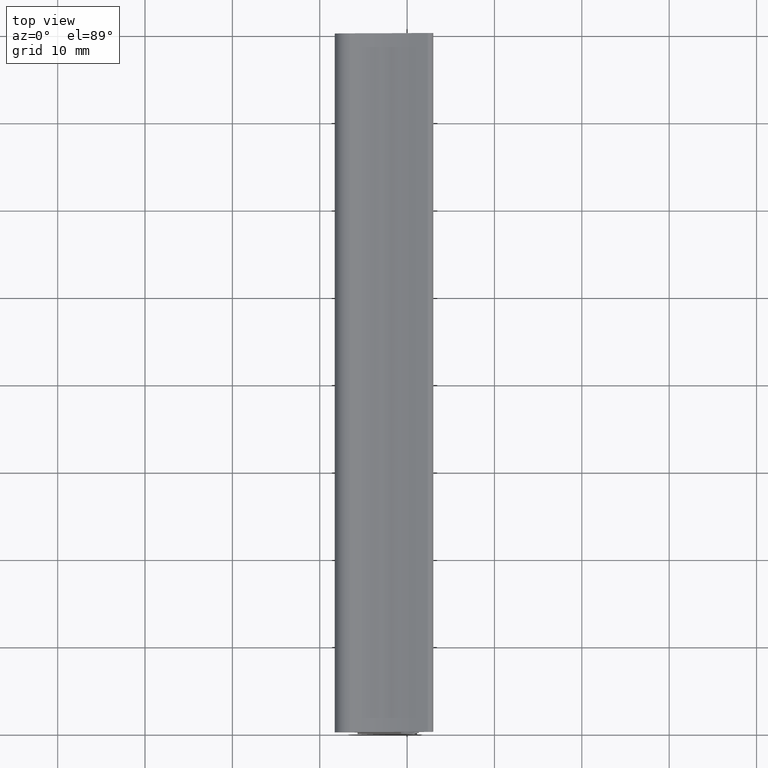
[diagram: clean part render]
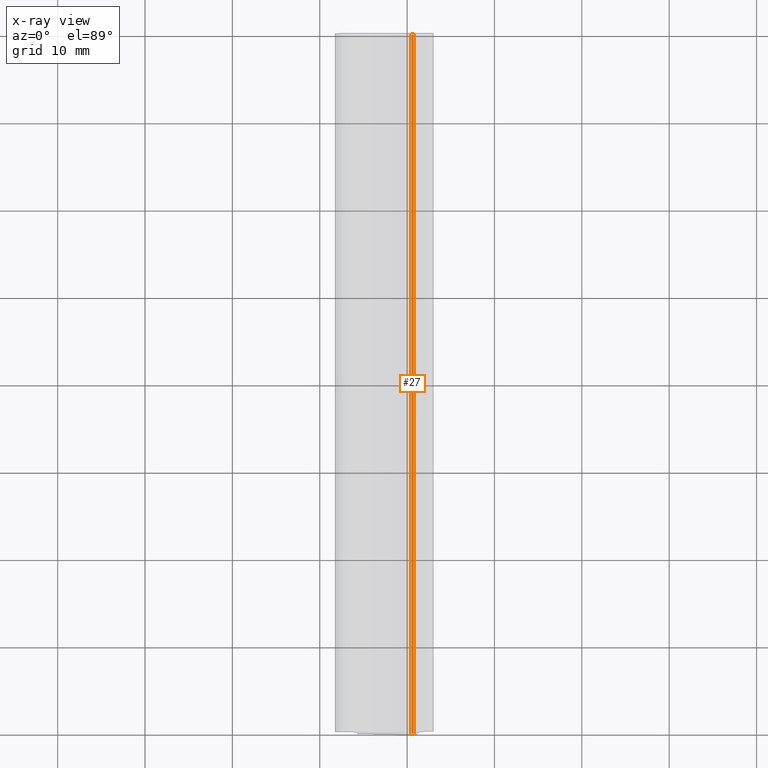
[diagram: x-ray — body ghosted, one internal face saturated and labeled with its STEP entity id]
A machine part, top view, then the same camera in x-ray: the body is ghosted and one INTERNAL B-rep face — a face not visible from any outside direction — is saturated and labeled: STEP entity #27.
In plain terms, the highlighted cylindrical surface (edge-blend (fillet) strip) has radius 0.4 mm, axis along (0, 1, 0).
Its self-contained STEP definition (entity closure, byte-faithful):
#27 = ADVANCED_FACE ( 'NONE', ( #2035 ), #2057, .T. ) ;
#65 = AXIS2_PLACEMENT_3D ( 'NONE', #1447, #1450, #1449 ) ;
#75 = AXIS2_PLACEMENT_3D ( 'NONE', #1443, #1446, #1454 ) ;
#162 = AXIS2_PLACEMENT_3D ( 'NONE', #952, #965, #975 ) ;
#413 = EDGE_LOOP ( 'NONE', ( #458, #467, #466, #469 ) ) ;
#458 = ORIENTED_EDGE ( 'NONE', *, *, #703, .T. ) ;
#466 = ORIENTED_EDGE ( 'NONE', *, *, #704, .T. ) ;
#467 = ORIENTED_EDGE ( 'NONE', *, *, #754, .T. ) ;
#469 = ORIENTED_EDGE ( 'NONE', *, *, #752, .T. ) ;
#703 = EDGE_CURVE ( 'NONE', #999, #1275, #1728, .T. ) ;
#704 = EDGE_CURVE ( 'NONE', #1251, #1292, #1730, .T. ) ;
#752 = EDGE_CURVE ( 'NONE', #1292, #999, #1768, .T. ) ;
#754 = EDGE_CURVE ( 'NONE', #1275, #1251, #1766, .T. ) ;
#952 = CARTESIAN_POINT ( 'NONE',  ( 0.7316262196861170700, 80.00000000000000000, 9.285529402726400100 ) ) ;
#965 = DIRECTION ( 'NONE',  ( 0.0000000000000000000, 1.000000000000000000, 0.0000000000000000000 ) ) ;
#975 = DIRECTION ( 'NONE',  ( 0.0000000000000000000, 0.0000000000000000000, 1.000000000000000000 ) ) ;
#999 = VERTEX_POINT ( 'NONE', #1561 ) ;
#1251 = VERTEX_POINT ( 'NONE', #1534 ) ;
#1275 = VERTEX_POINT ( 'NONE', #1513 ) ;
#1292 = VERTEX_POINT ( 'NONE', #1497 ) ;
#1443 = CARTESIAN_POINT ( 'NONE',  ( 0.7316262196861170700, 0.0000000000000000000, 9.285529402726400100 ) ) ;
#1445 = CARTESIAN_POINT ( 'NONE',  ( 0.7316262196861170700, 80.00000000000000000, 9.685529402726398700 ) ) ;
#1446 = DIRECTION ( 'NONE',  ( 0.0000000000000000000, 1.000000000000000000, 0.0000000000000000000 ) ) ;
#1447 = CARTESIAN_POINT ( 'NONE',  ( 0.7316262196861170700, 80.00000000000000000, 9.285529402726400100 ) ) ;
#1449 = DIRECTION ( 'NONE',  ( 0.0000000000000000000, 0.0000000000000000000, 1.000000000000000000 ) ) ;
#1450 = DIRECTION ( 'NONE',  ( -0.0000000000000000000, -1.000000000000000000, -0.0000000000000000000 ) ) ;
#1454 = DIRECTION ( 'NONE',  ( 0.0000000000000000000, 0.0000000000000000000, 1.000000000000000000 ) ) ;
#1497 = CARTESIAN_POINT ( 'NONE',  ( 0.5118010619861915700, 80.00000000000250100, 9.619710341803122200 ) ) ;
#1513 = CARTESIAN_POINT ( 'NONE',  ( 0.7316262196861170700, 0.0000000000000000000, 9.685529402726398700 ) ) ;
#1534 = CARTESIAN_POINT ( 'NONE',  ( 0.7316262196861170700, 80.00000000000000000, 9.685529402726398700 ) ) ;
#1561 = CARTESIAN_POINT ( 'NONE',  ( 0.5118010619861915700, 0.0000000000000000000, 9.619710341803122200 ) ) ;
#1576 = DIRECTION ( 'NONE',  ( 0.0000000000000000000, 1.000000000000000000, 0.0000000000000000000 ) ) ;
#1581 = DIRECTION ( 'NONE',  ( -0.0000000000000000000, -1.000000000000000000, -0.0000000000000000000 ) ) ;
#1582 = CARTESIAN_POINT ( 'NONE',  ( 0.5118010619861290700, 80.00000000000000000, 9.619710341803077800 ) ) ;
#1728 = CIRCLE ( 'NONE', #75, 0.3999999999999993000 ) ;
#1730 = CIRCLE ( 'NONE', #65, 0.3999999999999993000 ) ;
#1766 = LINE ( 'NONE', #1445, #1772 ) ;
#1768 = LINE ( 'NONE', #1582, #1769 ) ;
#1769 = VECTOR ( 'NONE', #1581, 1000.000000000000000 ) ;
#1772 = VECTOR ( 'NONE', #1576, 1000.000000000000000 ) ;
#2035 = FACE_OUTER_BOUND ( 'NONE', #413, .T. ) ;
#2057 = CYLINDRICAL_SURFACE ( 'NONE', #162, 0.3999999999999993000 ) ;